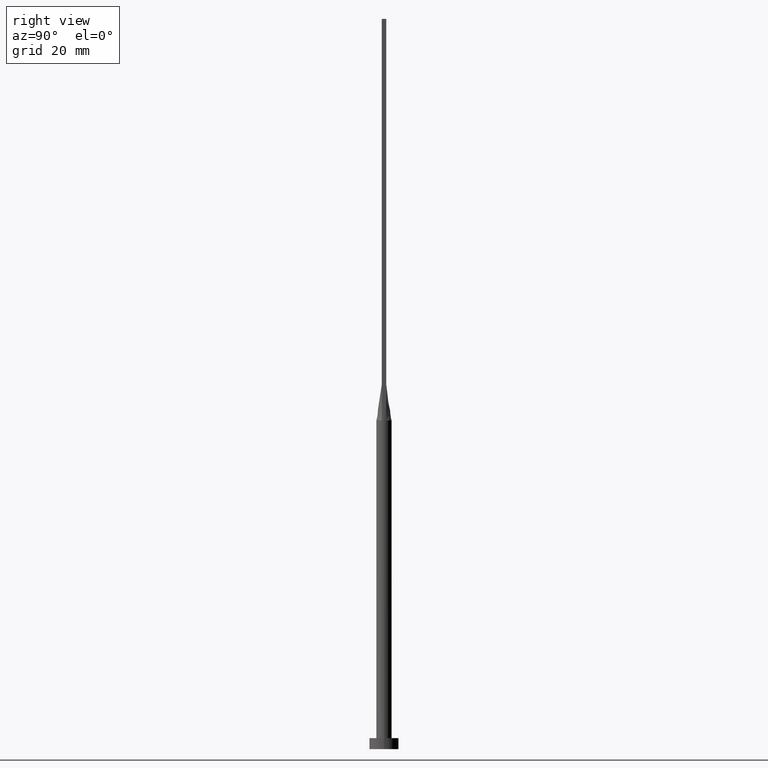
[diagram: clean part render]
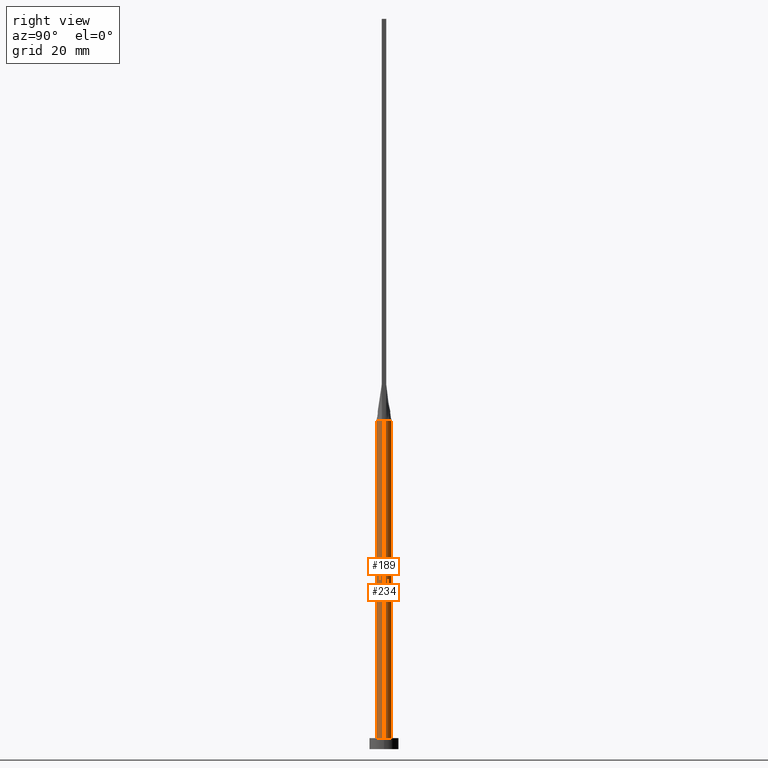
[diagram: same view with one multi-face feature highlighted, each face labeled with its STEP entity id]
A machine part, right view. The highlighted faces form ONE feature: a constant-radius fillet chain: 2 tangent blend faces with common blend radius 2.1 mm. The faces share edges in the B-rep.
Their STEP definitions:
[1] entity #189 (Cylinder):
#2 = EDGE_CURVE ( 'NONE', #59, #512, #418, .T. ) ;
#3 = DIRECTION ( 'NONE',  ( 1.000000000000000000, 0.000000000000000000, 0.000000000000000000 ) ) ;
#4 = CARTESIAN_POINT ( 'NONE',  ( -2.100000000000000089, 0.000000000000000000, 3.000000000000000000 ) ) ;
#6 = DIRECTION ( 'NONE',  ( 0.000000000000000000, 0.000000000000000000, 1.000000000000000000 ) ) ;
#17 = ORIENTED_EDGE ( 'NONE', *, *, #464, .F. ) ;
#29 = VERTEX_POINT ( 'NONE', #127 ) ;
#37 = VECTOR ( 'NONE', #220, 1000.000000000000000 ) ;
#59 = VERTEX_POINT ( 'NONE', #4 ) ;
#63 = VERTEX_POINT ( 'NONE', #129 ) ;
#68 = FACE_OUTER_BOUND ( 'NONE', #473, .T. ) ;
#81 = DIRECTION ( 'NONE',  ( 0.000000000000000000, 0.000000000000000000, 1.000000000000000000 ) ) ;
#87 = DIRECTION ( 'NONE',  ( 0.000000000000000000, 0.000000000000000000, 1.000000000000000000 ) ) ;
#106 = AXIS2_PLACEMENT_3D ( 'NONE', #487, #81, #290 ) ;
#123 = AXIS2_PLACEMENT_3D ( 'NONE', #214, #6, #3 ) ;
#127 = CARTESIAN_POINT ( 'NONE',  ( 2.002626276893244128, -0.6324088233005202841, 90.00000000000000000 ) ) ;
#129 = CARTESIAN_POINT ( 'NONE',  ( -2.100000000000000089, -1.284268198382905442E-16, 90.00000000000000000 ) ) ;
#143 = VERTEX_POINT ( 'NONE', #396 ) ;
#150 = ORIENTED_EDGE ( 'NONE', *, *, #427, .T. ) ;
#153 = CARTESIAN_POINT ( 'NONE',  ( 0.000000000000000000, 0.000000000000000000, 90.00000000000000000 ) ) ;
#178 = LINE ( 'NONE', #263, #37 ) ;
#189 = ADVANCED_FACE ( 'NONE', ( #68 ), #243, .T. ) ;
#201 = CARTESIAN_POINT ( 'NONE',  ( 2.100000000000000089, 2.571758278209441957E-16, 90.00000000000000000 ) ) ;
#208 = EDGE_CURVE ( 'NONE', #251, #29, #495, .T. ) ;
#214 = CARTESIAN_POINT ( 'NONE',  ( 0.000000000000000000, 0.000000000000000000, 90.00000000000000000 ) ) ;
#220 = DIRECTION ( 'NONE',  ( -0.000000000000000000, -0.000000000000000000, -1.000000000000000000 ) ) ;
#243 = CYLINDRICAL_SURFACE ( 'NONE', #536, 2.100000000000000089 ) ;
#244 = ORIENTED_EDGE ( 'NONE', *, *, #357, .F. ) ;
#251 = VERTEX_POINT ( 'NONE', #415 ) ;
#259 = DIRECTION ( 'NONE',  ( 1.000000000000000000, -1.776356839400250465E-15, 0.000000000000000000 ) ) ;
#263 = CARTESIAN_POINT ( 'NONE',  ( -2.100000000000000089, 0.000000000000000000, 90.00000000000000000 ) ) ;
#290 = DIRECTION ( 'NONE',  ( 1.000000000000000000, 0.000000000000000000, 0.000000000000000000 ) ) ;
#302 = ORIENTED_EDGE ( 'NONE', *, *, #437, .F. ) ;
#312 = AXIS2_PLACEMENT_3D ( 'NONE', #535, #87, #259 ) ;
#322 = DIRECTION ( 'NONE',  ( -1.000000000000000000, 0.000000000000000000, 0.000000000000000000 ) ) ;
#329 = DIRECTION ( 'NONE',  ( 1.000000000000000000, 0.000000000000000000, 0.000000000000000000 ) ) ;
#336 = CIRCLE ( 'NONE', #312, 2.100000000000000089 ) ;
#357 = EDGE_CURVE ( 'NONE', #143, #512, #387, .T. ) ;
#387 = LINE ( 'NONE', #201, #575 ) ;
#396 = CARTESIAN_POINT ( 'NONE',  ( 2.100000000000000089, 3.372022381799045987E-17, 90.00000000000000000 ) ) ;
#415 = CARTESIAN_POINT ( 'NONE',  ( -2.002601997802567535, -0.6324010168594718095, 90.00000000000000000 ) ) ;
#418 = CIRCLE ( 'NONE', #106, 2.100000000000000089 ) ;
#425 = DIRECTION ( 'NONE',  ( -0.000000000000000000, -0.000000000000000000, -1.000000000000000000 ) ) ;
#427 = EDGE_CURVE ( 'NONE', #63, #59, #178, .T. ) ;
#437 = EDGE_CURVE ( 'NONE', #63, #251, #547, .T. ) ;
#441 = CARTESIAN_POINT ( 'NONE',  ( 2.100000000000000089, 2.571758278209441957E-16, 3.000000000000000000 ) ) ;
#464 = EDGE_CURVE ( 'NONE', #29, #143, #336, .T. ) ;
#468 = DIRECTION ( 'NONE',  ( 0.000000000000000000, 0.000000000000000000, 1.000000000000000000 ) ) ;
#473 = EDGE_LOOP ( 'NONE', ( #244, #17, #501, #302, #150, #525 ) ) ;
#487 = CARTESIAN_POINT ( 'NONE',  ( 0.000000000000000000, 0.000000000000000000, 3.000000000000000000 ) ) ;
#495 = CIRCLE ( 'NONE', #546, 2.100000000000000089 ) ;
#501 = ORIENTED_EDGE ( 'NONE', *, *, #208, .F. ) ;
#506 = CARTESIAN_POINT ( 'NONE',  ( 0.000000000000000000, 0.000000000000000000, 90.00000000000000000 ) ) ;
#512 = VERTEX_POINT ( 'NONE', #441 ) ;
#524 = DIRECTION ( 'NONE',  ( -0.000000000000000000, -0.000000000000000000, -1.000000000000000000 ) ) ;
#525 = ORIENTED_EDGE ( 'NONE', *, *, #2, .T. ) ;
#535 = CARTESIAN_POINT ( 'NONE',  ( 0.000000000000000000, 0.000000000000000000, 90.00000000000000000 ) ) ;
#536 = AXIS2_PLACEMENT_3D ( 'NONE', #153, #425, #322 ) ;
#546 = AXIS2_PLACEMENT_3D ( 'NONE', #506, #468, #329 ) ;
#547 = CIRCLE ( 'NONE', #123, 2.100000000000000089 ) ;
#575 = VECTOR ( 'NONE', #524, 1000.000000000000000 ) ;
[2] entity #234 (Cylinder):
#1 = CARTESIAN_POINT ( 'NONE',  ( -1.667357759214464830, 1.291791096182927534, 90.00000000000001421 ) ) ;
#4 = CARTESIAN_POINT ( 'NONE',  ( -2.100000000000000089, 0.000000000000000000, 3.000000000000000000 ) ) ;
#8 = VERTEX_POINT ( 'NONE', #260 ) ;
#20 = FACE_OUTER_BOUND ( 'NONE', #570, .T. ) ;
#28 = EDGE_CURVE ( 'NONE', #8, #114, #152, .T. ) ;
#37 = VECTOR ( 'NONE', #220, 1000.000000000000000 ) ;
#41 = CARTESIAN_POINT ( 'NONE',  ( 1.878511276496548366, 0.9591670956957804028, 90.00000000000000000 ) ) ;
#46 = CARTESIAN_POINT ( 'NONE',  ( 0.9765948449220478444, 1.875594675604967065, 90.00000000000001421 ) ) ;
#52 = CARTESIAN_POINT ( 'NONE',  ( -1.184262492297963876, 1.748903470433446294, 90.00000000000002842 ) ) ;
#55 = CARTESIAN_POINT ( 'NONE',  ( 0.000000000000000000, 0.000000000000000000, 90.00000000000000000 ) ) ;
#59 = VERTEX_POINT ( 'NONE', #4 ) ;
#63 = VERTEX_POINT ( 'NONE', #129 ) ;
#66 = DIRECTION ( 'NONE',  ( 0.000000000000000000, 0.000000000000000000, 1.000000000000000000 ) ) ;
#97 = CIRCLE ( 'NONE', #432, 2.100000000000000089 ) ;
#99 = ORIENTED_EDGE ( 'NONE', *, *, #257, .F. ) ;
#104 = CARTESIAN_POINT ( 'NONE',  ( 0.000000000000000000, 0.000000000000000000, 90.00000000000000000 ) ) ;
#114 = VERTEX_POINT ( 'NONE', #457 ) ;
#126 = DIRECTION ( 'NONE',  ( 0.000000000000000000, 0.000000000000000000, 1.000000000000000000 ) ) ;
#129 = CARTESIAN_POINT ( 'NONE',  ( -2.100000000000000089, -1.284268198382905442E-16, 90.00000000000000000 ) ) ;
#133 = CARTESIAN_POINT ( 'NONE',  ( 1.952271707612931895, 0.7915068550356627597, 89.99999999999998579 ) ) ;
#135 = CARTESIAN_POINT ( 'NONE',  ( -1.952271707612931895, 0.7915068550356629817, 90.00000000000001421 ) ) ;
#142 = DIRECTION ( 'NONE',  ( -1.000000000000000000, 0.000000000000000000, 0.000000000000000000 ) ) ;
#143 = VERTEX_POINT ( 'NONE', #396 ) ;
#152 = B_SPLINE_CURVE_WITH_KNOTS ( 'NONE', 3,
 ( #174, #133, #41, #493, #314, #496, #46, #318, #273, #218, #450, #540, #52, #580, #1, #169, #135, #307 ),
 .UNSPECIFIED., .F., .F.,
 ( 4, 2, 2, 2, 2, 2, 2, 2, 4 ),
 ( 0.000000000000000000, 0.1249999999999999167, 0.2499999999999998890, 0.3749999999999998335, 0.4999999999999998890, 0.6249999999999998890, 0.7499999999999998890, 0.8750000000000000000, 1.000000000000000000 ),
 .UNSPECIFIED. ) ;
#164 = EDGE_CURVE ( 'NONE', #512, #59, #554, .T. ) ;
#169 = CARTESIAN_POINT ( 'NONE',  ( -1.878511276496549032, 0.9591670956957809580, 90.00000000000004263 ) ) ;
#174 = CARTESIAN_POINT ( 'NONE',  ( 2.002598039528881380, 0.6323997261616642884, 90.00000000000000000 ) ) ;
#178 = LINE ( 'NONE', #263, #37 ) ;
#180 = CIRCLE ( 'NONE', #240, 2.100000000000000089 ) ;
#191 = AXIS2_PLACEMENT_3D ( 'NONE', #472, #66, #552 ) ;
#201 = CARTESIAN_POINT ( 'NONE',  ( 2.100000000000000089, 2.571758278209441957E-16, 90.00000000000000000 ) ) ;
#218 = CARTESIAN_POINT ( 'NONE',  ( -0.2565105576742073845, 2.100000000000000533, 90.00000000000001421 ) ) ;
#220 = DIRECTION ( 'NONE',  ( -0.000000000000000000, -0.000000000000000000, -1.000000000000000000 ) ) ;
#234 = ADVANCED_FACE ( 'NONE', ( #20 ), #279, .T. ) ;
#240 = AXIS2_PLACEMENT_3D ( 'NONE', #541, #126, #494 ) ;
#257 = EDGE_CURVE ( 'NONE', #143, #8, #97, .T. ) ;
#260 = CARTESIAN_POINT ( 'NONE',  ( 2.002598039528881380, 0.6323997261616642884, 90.00000000000000000 ) ) ;
#263 = CARTESIAN_POINT ( 'NONE',  ( -2.100000000000000089, 0.000000000000000000, 90.00000000000000000 ) ) ;
#273 = CARTESIAN_POINT ( 'NONE',  ( 0.2565105576742081062, 2.100000000000000533, 90.00000000000000000 ) ) ;
#277 = AXIS2_PLACEMENT_3D ( 'NONE', #104, #417, #142 ) ;
#279 = CYLINDRICAL_SURFACE ( 'NONE', #277, 2.100000000000000089 ) ;
#307 = CARTESIAN_POINT ( 'NONE',  ( -2.002622288503867587, 0.6324075186587619912, 90.00000000000000000 ) ) ;
#314 = CARTESIAN_POINT ( 'NONE',  ( 1.529462611013499451, 1.456669187245239527, 90.00000000000002842 ) ) ;
#318 = CARTESIAN_POINT ( 'NONE',  ( 0.5124799074986362557, 2.051574327850739454, 90.00000000000004263 ) ) ;
#327 = ORIENTED_EDGE ( 'NONE', *, *, #357, .T. ) ;
#357 = EDGE_CURVE ( 'NONE', #143, #512, #387, .T. ) ;
#387 = LINE ( 'NONE', #201, #575 ) ;
#396 = CARTESIAN_POINT ( 'NONE',  ( 2.100000000000000089, 3.372022381799045987E-17, 90.00000000000000000 ) ) ;
#408 = ORIENTED_EDGE ( 'NONE', *, *, #28, .F. ) ;
#417 = DIRECTION ( 'NONE',  ( -0.000000000000000000, -0.000000000000000000, -1.000000000000000000 ) ) ;
#427 = EDGE_CURVE ( 'NONE', #63, #59, #178, .T. ) ;
#432 = AXIS2_PLACEMENT_3D ( 'NONE', #55, #557, #520 ) ;
#441 = CARTESIAN_POINT ( 'NONE',  ( 2.100000000000000089, 2.571758278209441957E-16, 3.000000000000000000 ) ) ;
#450 = CARTESIAN_POINT ( 'NONE',  ( -0.5124799074986362557, 2.051574327850739454, 90.00000000000002842 ) ) ;
#454 = EDGE_CURVE ( 'NONE', #114, #63, #180, .T. ) ;
#457 = CARTESIAN_POINT ( 'NONE',  ( -2.002622288503867587, 0.6324075186587619912, 90.00000000000000000 ) ) ;
#472 = CARTESIAN_POINT ( 'NONE',  ( 0.000000000000000000, 0.000000000000000000, 3.000000000000000000 ) ) ;
#475 = ORIENTED_EDGE ( 'NONE', *, *, #164, .T. ) ;
#493 = CARTESIAN_POINT ( 'NONE',  ( 1.667357759214464608, 1.291791096182927090, 90.00000000000000000 ) ) ;
#494 = DIRECTION ( 'NONE',  ( 1.000000000000000000, 0.000000000000000000, 0.000000000000000000 ) ) ;
#496 = CARTESIAN_POINT ( 'NONE',  ( 1.184262492297964098, 1.748903470433445628, 90.00000000000000000 ) ) ;
#504 = ORIENTED_EDGE ( 'NONE', *, *, #427, .F. ) ;
#512 = VERTEX_POINT ( 'NONE', #441 ) ;
#520 = DIRECTION ( 'NONE',  ( 1.000000000000000000, 0.000000000000000000, 0.000000000000000000 ) ) ;
#522 = ORIENTED_EDGE ( 'NONE', *, *, #454, .F. ) ;
#524 = DIRECTION ( 'NONE',  ( -0.000000000000000000, -0.000000000000000000, -1.000000000000000000 ) ) ;
#540 = CARTESIAN_POINT ( 'NONE',  ( -0.9765948449220482885, 1.875594675604967509, 90.00000000000004263 ) ) ;
#541 = CARTESIAN_POINT ( 'NONE',  ( 0.000000000000000000, 0.000000000000000000, 90.00000000000000000 ) ) ;
#552 = DIRECTION ( 'NONE',  ( 1.000000000000000000, 0.000000000000000000, 0.000000000000000000 ) ) ;
#554 = CIRCLE ( 'NONE', #191, 2.100000000000000089 ) ;
#557 = DIRECTION ( 'NONE',  ( 0.000000000000000000, 0.000000000000000000, 1.000000000000000000 ) ) ;
#570 = EDGE_LOOP ( 'NONE', ( #99, #327, #475, #504, #522, #408 ) ) ;
#575 = VECTOR ( 'NONE', #524, 1000.000000000000000 ) ;
#580 = CARTESIAN_POINT ( 'NONE',  ( -1.529462611013499451, 1.456669187245239527, 90.00000000000002842 ) ) ;